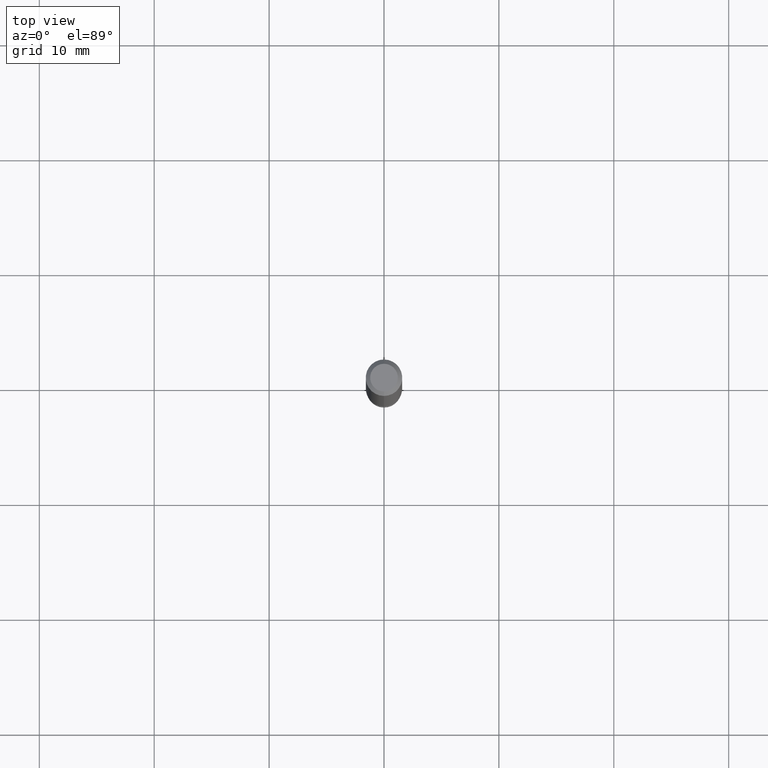
[diagram: clean part render]
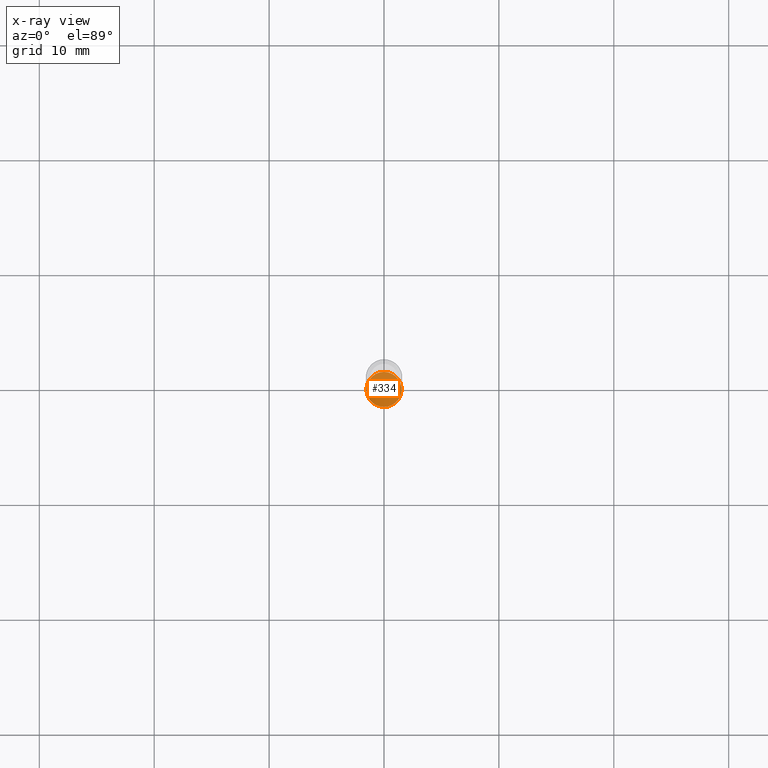
[diagram: x-ray — body ghosted, one internal face saturated and labeled with its STEP entity id]
A machine part, top view, then the same camera in x-ray: the body is ghosted and one INTERNAL B-rep face — a face not visible from any outside direction — is saturated and labeled: STEP entity #334.
In plain terms, the highlighted planar face has unit normal (-0, 0, 1).
Its self-contained STEP definition (entity closure, byte-faithful):
#7 = ORIENTED_EDGE ( 'NONE', *, *, #370, .F. ) ;
#39 = DIRECTION ( 'NONE',  ( -6.982962677686265922E-15, -1.000000000000000000, 3.491411127372860730E-15 ) ) ;
#67 = CARTESIAN_POINT ( 'NONE',  ( -4.189777606611192441E-16, -0.06000000000000810241, -2.319999999999999840 ) ) ;
#101 = CIRCLE ( 'NONE', #145, 0.05999999999999999778 ) ;
#114 = CARTESIAN_POINT ( 'NONE',  ( 5.673601376255274580E-29, -8.100073815505038219E-15, -2.320000000000000284 ) ) ;
#135 = EDGE_LOOP ( 'NONE', ( #411, #7 ) ) ;
#145 = AXIS2_PLACEMENT_3D ( 'NONE', #386, #302, #384 ) ;
#156 = VERTEX_POINT ( 'NONE', #67 ) ;
#206 = FACE_OUTER_BOUND ( 'NONE', #135, .T. ) ;
#214 = AXIS2_PLACEMENT_3D ( 'NONE', #114, #315, #438 ) ;
#239 = VERTEX_POINT ( 'NONE', #549 ) ;
#264 = PLANE ( 'NONE',  #497 ) ;
#302 = DIRECTION ( 'NONE',  ( -2.445517834592790864E-29, 3.491411127372861124E-15, 1.000000000000000000 ) ) ;
#315 = DIRECTION ( 'NONE',  ( -2.445517834592790864E-29, 3.491411127372861124E-15, 1.000000000000000000 ) ) ;
#334 = ADVANCED_FACE ( 'NONE', ( #206 ), #264, .F. ) ;
#370 = EDGE_CURVE ( 'NONE', #239, #156, #445, .T. ) ;
#376 = EDGE_CURVE ( 'NONE', #156, #239, #101, .T. ) ;
#384 = DIRECTION ( 'NONE',  ( -6.982962677686265922E-15, -1.000000000000000000, 4.553079989440439092E-15 ) ) ;
#386 = CARTESIAN_POINT ( 'NONE',  ( 5.673601376255274580E-29, -8.100073815505038219E-15, -2.320000000000000284 ) ) ;
#411 = ORIENTED_EDGE ( 'NONE', *, *, #376, .F. ) ;
#429 = DIRECTION ( 'NONE',  ( -2.445517834592790864E-29, 3.491411127372860730E-15, 1.000000000000000000 ) ) ;
#436 = CARTESIAN_POINT ( 'NONE',  ( 4.189777606612326922E-16, 0.05999999999999190009, -2.320000000000000284 ) ) ;
#438 = DIRECTION ( 'NONE',  ( -6.982962677686265922E-15, -1.000000000000000000, 4.553079989440439092E-15 ) ) ;
#445 = CIRCLE ( 'NONE', #214, 0.05999999999999999778 ) ;
#497 = AXIS2_PLACEMENT_3D ( 'NONE', #436, #429, #39 ) ;
#549 = CARTESIAN_POINT ( 'NONE',  ( 4.263256414561168444E-16, 0.05999999999999190009, -2.320000000000000284 ) ) ;